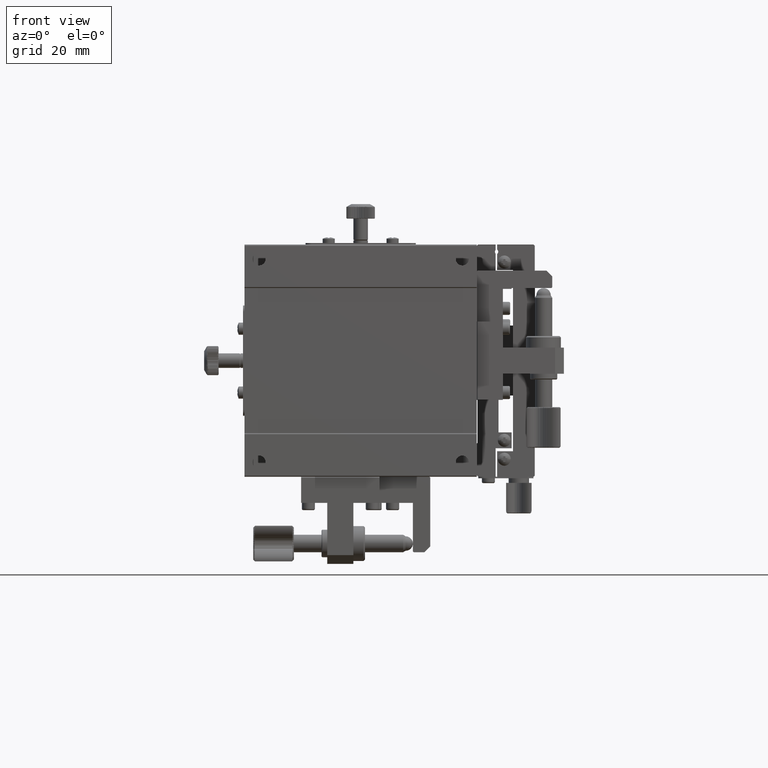
[diagram: clean part render]
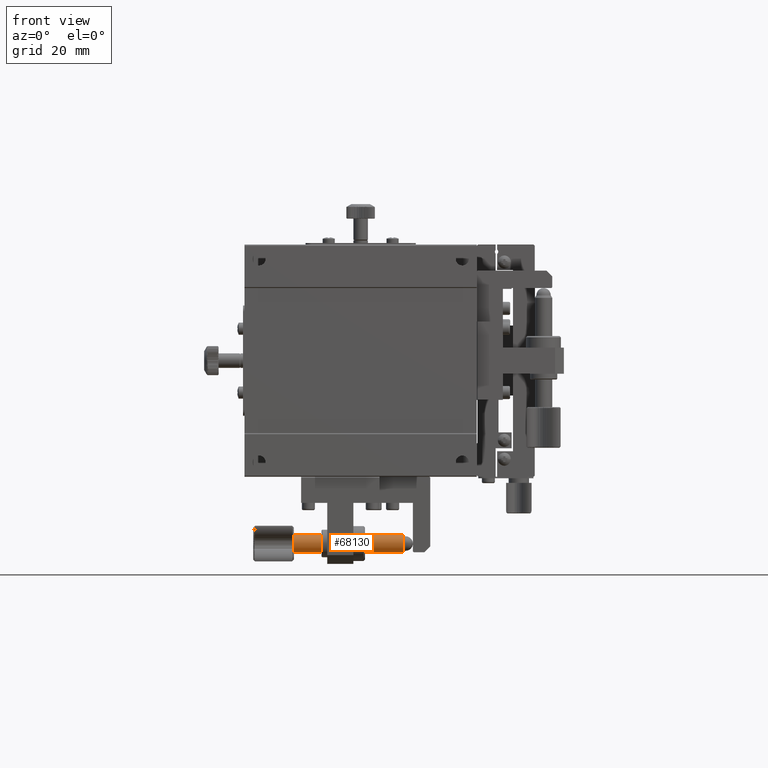
[diagram: same view with one face highlighted and labeled with its STEP entity id]
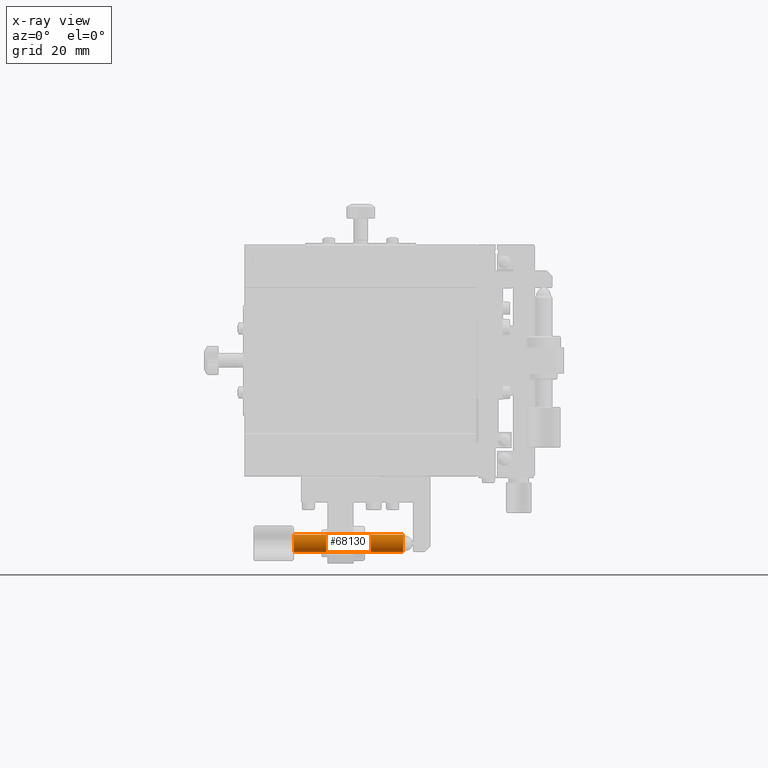
[diagram: x-ray of the same camera — body ghosted, the highlighted face saturated]
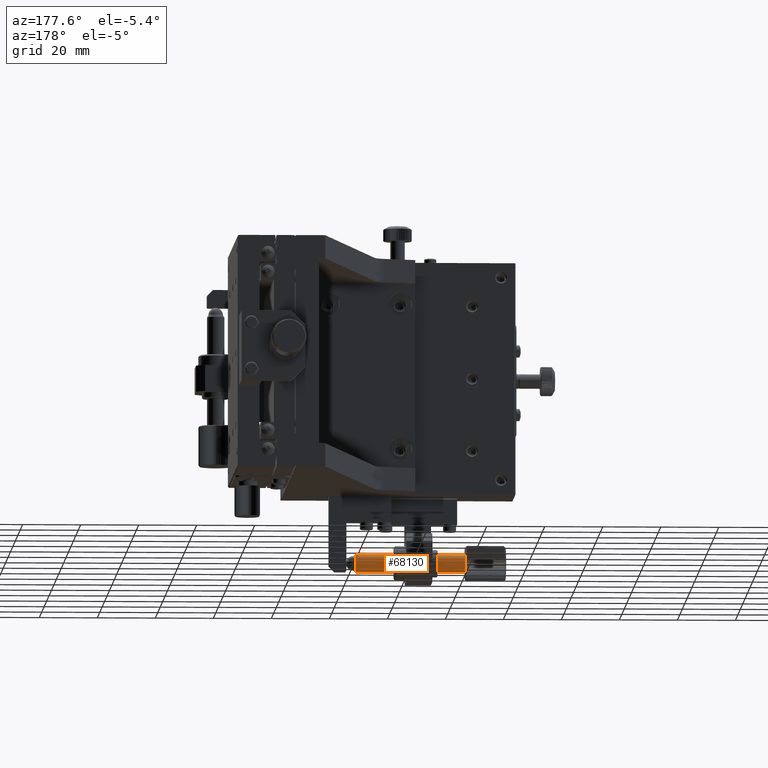
[diagram: same view with one face highlighted and labeled with its STEP entity id]
A machine part, front view. The second image highlights one B-rep face of the part: STEP entity #68130.
The next image is the same camera in x-ray: the body ghosted, the highlighted face saturated — about 0% of this face is hidden behind the body in this view.
A second angle (auxiliary view) of the same face is appended — the face is thin or edge-on in the first view.
In plain terms, the highlighted cylindrical surface (bore or boss wall) has radius 3 mm, axis along (-1, 0, 0).
Its self-contained STEP definition (entity closure, byte-faithful):
#498 = CIRCLE ( 'NONE', #31124, 3.000000000000002665 ) ;
#695 = FACE_OUTER_BOUND ( 'NONE', #41293, .T. ) ;
#7077 = FACE_OUTER_BOUND ( 'NONE', #47513, .T. ) ;
#10215 = DIRECTION ( 'NONE',  ( -1.000000000000000000, 0.000000000000000000, 0.000000000000000000 ) ) ;
#11605 = VERTEX_POINT ( 'NONE', #23997 ) ;
#14338 = CARTESIAN_POINT ( 'NONE',  ( -63.00000000000000000, -11.00000000000000000, -103.0000000000000284 ) ) ;
#19319 = EDGE_CURVE ( 'NONE', #11605, #11605, #38057, .T. ) ;
#23997 = CARTESIAN_POINT ( 'NONE',  ( -63.00000000000000000, -11.00000000000000000, -100.0000000000000142 ) ) ;
#26729 = DIRECTION ( 'NONE',  ( 0.000000000000000000, 0.000000000000000000, 1.000000000000000000 ) ) ;
#30685 = VERTEX_POINT ( 'NONE', #55042 ) ;
#31058 = CYLINDRICAL_SURFACE ( 'NONE', #75332, 3.000000000000002665 ) ;
#31124 = AXIS2_PLACEMENT_3D ( 'NONE', #40591, #10215, #34603 ) ;
#34603 = DIRECTION ( 'NONE',  ( 0.000000000000000000, 0.000000000000000000, 1.000000000000000000 ) ) ;
#38057 = CIRCLE ( 'NONE', #58436, 3.000000000000002665 ) ;
#40591 = CARTESIAN_POINT ( 'NONE',  ( -25.36599999999999966, -11.00000000000000000, -103.0000000000000284 ) ) ;
#41293 = EDGE_LOOP ( 'NONE', ( #57960 ) ) ;
#44963 = ORIENTED_EDGE ( 'NONE', *, *, #59142, .T. ) ;
#47513 = EDGE_LOOP ( 'NONE', ( #44963 ) ) ;
#48622 = DIRECTION ( 'NONE',  ( -1.000000000000000000, 0.000000000000000000, 0.000000000000000000 ) ) ;
#55042 = CARTESIAN_POINT ( 'NONE',  ( -25.36599999999999966, -11.00000000000000000, -100.0000000000000142 ) ) ;
#57960 = ORIENTED_EDGE ( 'NONE', *, *, #19319, .T. ) ;
#58436 = AXIS2_PLACEMENT_3D ( 'NONE', #14338, #64624, #26729 ) ;
#59142 = EDGE_CURVE ( 'NONE', #30685, #30685, #498, .T. ) ;
#64624 = DIRECTION ( 'NONE',  ( 1.000000000000000000, -0.000000000000000000, -0.000000000000000000 ) ) ;
#68130 = ADVANCED_FACE ( 'NONE', ( #695, #7077 ), #31058, .T. ) ;
#72983 = DIRECTION ( 'NONE',  ( 0.000000000000000000, 0.000000000000000000, 1.000000000000000000 ) ) ;
#73376 = CARTESIAN_POINT ( 'NONE',  ( -77.00000000000000000, -11.00000000000000000, -103.0000000000000284 ) ) ;
#75332 = AXIS2_PLACEMENT_3D ( 'NONE', #73376, #48622, #72983 ) ;